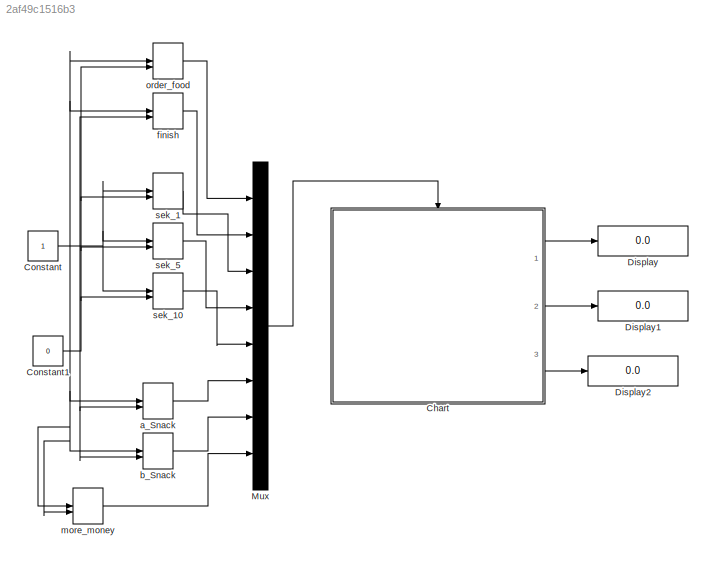
MODEL slx_2af49c1516b3
KIND model
CONFIG AbsTol = auto
CONFIG EnableMultiTasking = off
CONFIG FixedStep = auto
CONFIG MaxStep = auto
CONFIG MinStep = auto
CONFIG RelTol = 1e-3
CONFIG SampleTimeConstraint = Unconstrained
CONFIG Solver = VariableStepAuto
CONFIG SolverName = VariableStepAuto
CONFIG StartTime = 0.0
CONFIG StopTime = 100
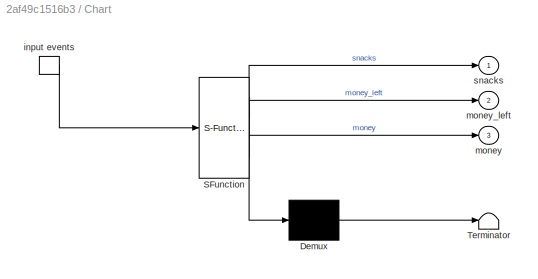
BLOCK [SubSystem] Chart
  BlockKeywords = __PRM__SERIALIZED__DATA__:Stateflow Chart,Stateflow Diagram
  ErrorFcn = Stateflow.Translate.translate
  PermitHierarchicalResolution = ExplicitOnly
  Ports = [0, 3, 0, 1]
  RequestExecContextInheritance = off
  SFBlockType = Chart
  TreatAsAtomicUnit = on
BLOCK [Demux] Chart/ Demux 
  Outputs = 1
  Ports = [1, 1]
BLOCK [S-Function] Chart/ SFunction 
  EnableBusSupport = on
  FunctionName = sf_sfun
  PortCounts = [1 4]
  Ports = [1, 4]
  SFcnIsStateOwnerBlock = off
  SFunctionDeploymentMode = off
  Tag = Stateflow S-Function Vending_1 3
BLOCK [Terminator] Chart/ Terminator 
BLOCK [TriggerPort] Chart/input events
  Ports = [0, 1]
  ShowOutputPort = on
  StatesWhenEnabling = held
  TriggerType = either
  VariantControl = (inherit)
BLOCK [Outport] Chart/money
  IconDisplay = Port number
  Port = 3
BLOCK [Outport] Chart/money_left
  IconDisplay = Port number
  Port = 2
BLOCK [Outport] Chart/snacks
  IconDisplay = Port number
BLOCK [Constant] Constant
BLOCK [Constant] Constant1
  Value = 0
BLOCK [Display] Display
  Decimation = 1
  Format = long
  Ports = [1]
BLOCK [Display] Display1
  Decimation = 1
  Ports = [1]
BLOCK [Display] Display2
  Decimation = 1
  Ports = [1]
BLOCK [Mux] Mux
  DisplayOption = bar
  Inputs = 8
  Ports = [8, 1]
BLOCK [ManualSwitch] a_Snack
BLOCK [ManualSwitch] b_Snack
BLOCK [ManualSwitch] finish
  CurrentSetting = 0
BLOCK [ManualSwitch] more_money
  CurrentSetting = 0
BLOCK [ManualSwitch] order_food 
  CurrentSetting = 0
BLOCK [ManualSwitch] sek_1
BLOCK [ManualSwitch] sek_10
  CurrentSetting = 0
BLOCK [ManualSwitch] sek_5
LINE Chart:1 -> Display:1
LINE Chart:2 -> Display1:1
LINE Chart:3 -> Display2:1
NET Constant1:1 -> a_Snack:2, b_Snack:2, finish:2, order_food :2, sek_10:2, sek_1:2, sek_5:2
NET Constant:1 -> a_Snack:1, b_Snack:1, finish:1, more_money:1, more_money:2, order_food :1, sek_10:1, sek_1:1, sek_5:1
LINE Mux:1 -> Chart:trigger
LINE a_Snack:1 -> Mux:6
LINE b_Snack:1 -> Mux:7
LINE finish:1 -> Mux:2
LINE more_money:1 -> Mux:8
LINE order_food :1 -> Mux:1
LINE sek_10:1 -> Mux:5
LINE sek_1:1 -> Mux:3
LINE sek_5:1 -> Mux:4
note: NET lines group one-source signal fan-out (src -> all destinations, sorted); 1:1 wires keep LINE
CHART Chart states=6 transitions=5
  STATE_LABEL 'VendingMachine\nen: money = 0;\n'
  STATE_LABEL 'MoneyCollector\non sek_1: money = money + 1;\non sek_5: money = money + 5;\non sek_10: money = money + 10;\n'
  STATE_LABEL 'SnackVendor\non a_Snack: Snack_A()\non b_Snack: Snack_B()'
  STATE_LABEL 'Snack_A'
  STATE_LABEL 'SCRIPT:\n\nfunction Snack_A\nSnack_A_cost = 6;\nif money>=6\n    money = money - Snack_A_cost;\n    snacks = 1;\nelse\n    snacks = 0;\nend  \n'
  STATE_LABEL 'Snack_B'
  STATE_LABEL 'SCRIPT:\n\nfunction Snack_B\nSnack_B_cost = 8;\nif money>=8\n    money = money - Snack_B_cost;\n    snacks = 1;\nelse\n    snacks = 0;\nend  \n'
  STATE_LABEL 'Finish\non finish: money_left = money\n money = 0;'
  STATE_LABEL 'order_food'
  STATE_LABEL 'more_money'
  STATE_LABEL 'finish'
  STATE_LABEL 'MoneyCollector\non sek_1: money = money + 1;\non sek_5: money = money + 5;\non sek_10: money = money + 10;\n'
  STATE_LABEL 'SnackVendor\non a_Snack: Snack_A()\non b_Snack: Snack_B()'
  STATE_LABEL 'Snack_A'
  STATE_LABEL 'SCRIPT:\n\nfunction Snack_A\nSnack_A_cost = 6;\nif money>=6\n    money = money - Snack_A_cost;\n    snacks = 1;\nelse\n    snacks = 0;\nend  \n'
  STATE_LABEL 'Snack_B'
  STATE_LABEL 'SCRIPT:\n\nfunction Snack_B\nSnack_B_cost = 8;\nif money>=8\n    money = money - Snack_B_cost;\n    snacks = 1;\nelse\n    snacks = 0;\nend  \n'
  STATE_LABEL 'Snack_A'
  STATE_LABEL 'SCRIPT:\n\nfunction Snack_A\nSnack_A_cost = 6;\nif money>=6\n    money = money - Snack_A_cost;\n    snacks = 1;\nelse\n    snacks = 0;\nend  \n'
  STATE_LABEL 'Snack_B'
  STATE_LABEL 'SCRIPT:\n\nfunction Snack_B\nSnack_B_cost = 8;\nif money>=8\n    money = money - Snack_B_cost;\n    snacks = 1;\nelse\n    snacks = 0;\nend  \n'
  STATE_LABEL 'Finish\non finish: money_left = money\n money = 0;'
